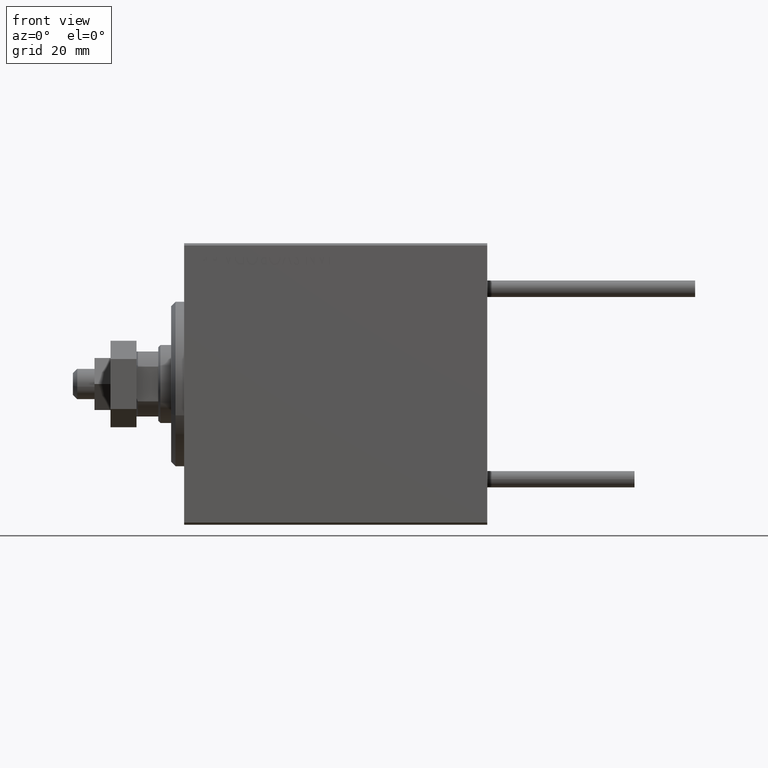
[diagram: clean part render]
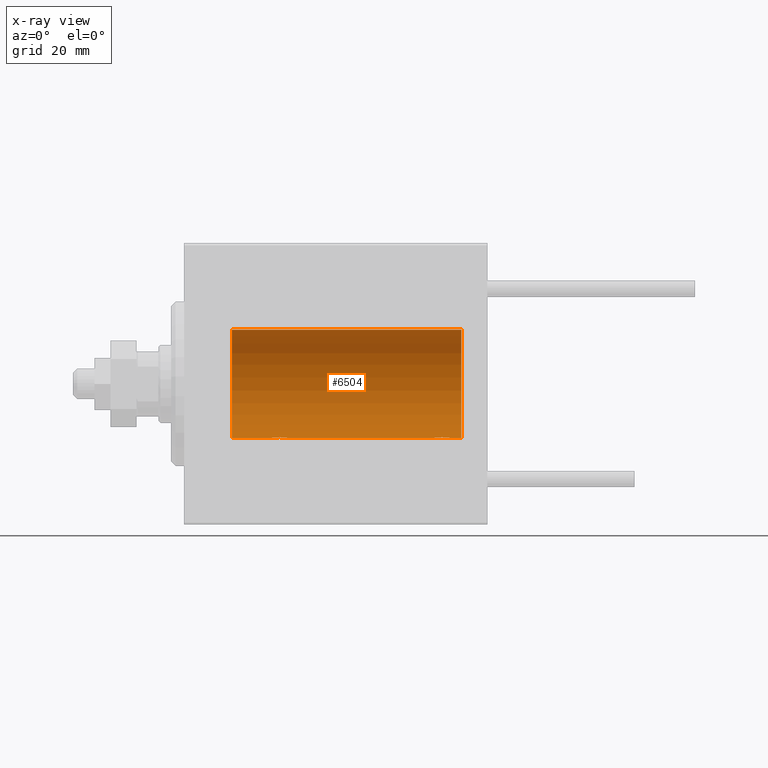
[diagram: x-ray — body ghosted, one internal face saturated and labeled with its STEP entity id]
A machine part, front view, then the same camera in x-ray: the body is ghosted and one INTERNAL B-rep face — a face not visible from any outside direction — is saturated and labeled: STEP entity #6504.
In plain terms, the highlighted cylindrical surface (partial cylindrical patch) has radius 12.5 mm, axis along (-1, -0, -0).
Its self-contained STEP definition (entity closure, byte-faithful):
#264 = CARTESIAN_POINT ( 'NONE',  ( 57.50000000000000000, -7.533308568696040923E-15, -12.50000000000000000 ) ) ;
#273 = ORIENTED_EDGE ( 'NONE', *, *, #11790, .T. ) ;
#953 = CARTESIAN_POINT ( 'NONE',  ( 64.00000000000000000, 0.000000000000000000, 12.50000000000000000 ) ) ;
#1236 = CARTESIAN_POINT ( 'NONE',  ( 24.00000000000000711, 0.1306394121199392910, -12.50000000000000533 ) ) ;
#1780 = DIRECTION ( 'NONE',  ( -1.000000000000000000, 0.000000000000000000, 0.000000000000000000 ) ) ;
#2005 = CARTESIAN_POINT ( 'NONE',  ( 20.06395648222636652, 0.5184196815546032733, -12.48990118705761532 ) ) ;
#4083 = CARTESIAN_POINT ( 'NONE',  ( 60.50335814299182857, 1.734998657226762608, -12.37922086519035680 ) ) ;
#4326 = CARTESIAN_POINT ( 'NONE',  ( 57.70300788371382339, 0.8876934327478099851, -12.46903010196599659 ) ) ;
#4580 = CARTESIAN_POINT ( 'NONE',  ( 57.99398366327209686, 1.322451657002070347, -12.43019346654085489 ) ) ;
#5432 = CARTESIAN_POINT ( 'NONE',  ( 64.00000000000000000, 1.530808498934191521E-15, -12.50000000000000000 ) ) ;
#6271 = DIRECTION ( 'NONE',  ( -1.000000000000000000, -0.000000000000000000, -0.000000000000000000 ) ) ;
#6314 = CARTESIAN_POINT ( 'NONE',  ( 64.00000000000000000, 0.000000000000000000, 0.000000000000000000 ) ) ;
#6504 = ADVANCED_FACE ( 'NONE', ( #17761 ), #29489, .F. ) ;
#6518 = LINE ( 'NONE', #29446, #34287 ) ;
#7635 = CARTESIAN_POINT ( 'NONE',  ( 61.50000000000001421, 0.1306394121199392355, -12.50000000000000178 ) ) ;
#8131 = CARTESIAN_POINT ( 'NONE',  ( 61.08991408680628155, 1.220297236145721387, -12.44076681548080110 ) ) ;
#8320 = LINE ( 'NONE', #20037, #17604 ) ;
#8624 = CARTESIAN_POINT ( 'NONE',  ( 57.50000000000002132, 0.1323736289504287567, -12.50000000000000178 ) ) ;
#8848 = CARTESIAN_POINT ( 'NONE',  ( 10.99999999999999645, 1.530808498934191521E-15, -12.50000000000000000 ) ) ;
#8853 = CARTESIAN_POINT ( 'NONE',  ( 23.73470742397611843, 1.003863686549172352, -12.46009879577771606 ) ) ;
#8891 = CARTESIAN_POINT ( 'NONE',  ( 24.00000000000000000, 1.530808426277417854E-15, -12.50000000000000000 ) ) ;
#8896 = DIRECTION ( 'NONE',  ( -1.000000000000000000, -0.000000000000000000, -0.000000000000000000 ) ) ;
#9109 = CARTESIAN_POINT ( 'NONE',  ( 24.00000000000000000, 1.530808426277417854E-15, -12.50000000000000000 ) ) ;
#9289 = EDGE_CURVE ( 'NONE', #11008, #44469, #9731, .T. ) ;
#9358 = CARTESIAN_POINT ( 'NONE',  ( 20.99316879552500481, 1.747608771958139906, -12.37764291807175354 ) ) ;
#9595 = DIRECTION ( 'NONE',  ( -1.000000000000000000, -0.000000000000000000, -0.000000000000000000 ) ) ;
#9731 = LINE ( 'NONE', #5432, #27243 ) ;
#10443 = ORIENTED_EDGE ( 'NONE', *, *, #34679, .F. ) ;
#11008 = VERTEX_POINT ( 'NONE', #13845 ) ;
#11790 = EDGE_CURVE ( 'NONE', #23114, #16011, #8320, .T. ) ;
#11946 = CARTESIAN_POINT ( 'NONE',  ( 58.27033506126852558, 1.598680238462363956, -12.39873273758732353 ) ) ;
#12675 = CARTESIAN_POINT ( 'NONE',  ( 23.89773031393658087, 0.6448065707253023415, -12.48394649977302073 ) ) ;
#12694 = CARTESIAN_POINT ( 'NONE',  ( 61.29742491916157121, 0.8868029758979365518, -12.46909283808506430 ) ) ;
#12930 = CARTESIAN_POINT ( 'NONE',  ( 22.12992629360264729, 2.000049200055402210, -12.33895470450623044 ) ) ;
#13261 = VERTEX_POINT ( 'NONE', #27252 ) ;
#13446 = CARTESIAN_POINT ( 'NONE',  ( 22.26269462454597914, 1.986986967296540119, -12.34109209020652465 ) ) ;
#13575 = B_SPLINE_CURVE_WITH_KNOTS ( 'NONE', 3,
 ( #264, #8624, #47088, #31068, #46838, #4326, #39698, #15781, #4580, #11946, #35642, #27499, #47589, #28003, #24174, #38948, #43024, #31569, #4083, #20097, #27757, #20354, #8131, #28246, #12694, #19844, #47337, #23674, #7635, #19601 ),
 .UNSPECIFIED., .F., .F.,
 ( 4, 2, 2, 2, 2, 2, 2, 2, 2, 2, 2, 2, 2, 2, 4 ),
 ( 8.524058063799960461E-19, 0.0003914362731607507980, 0.0007828725463215007287, 0.001174308819482250280, 0.001565745092642999723, 0.002348617638964514438, 0.003131490185286029369, 0.003522926458446797027, 0.003914362731607565551, 0.004305799004768333209, 0.004697235277929100866, 0.005088671551089869391, 0.005480107824250637048, 0.005871544097411405573, 0.006262980370572173230 ),
 .UNSPECIFIED. ) ;
#13845 = CARTESIAN_POINT ( 'NONE',  ( 64.00000000000000000, 1.530808498934191521E-15, -12.50000000000000000 ) ) ;
#15781 = CARTESIAN_POINT ( 'NONE',  ( 57.90963319990594727, 1.219754986802277896, -12.44082361696003680 ) ) ;
#16011 = VERTEX_POINT ( 'NONE', #25287 ) ;
#16109 = VERTEX_POINT ( 'NONE', #8848 ) ;
#16501 = CARTESIAN_POINT ( 'NONE',  ( 23.79742491916155700, 0.8868029758979399935, -12.46909283808506430 ) ) ;
#16801 = CARTESIAN_POINT ( 'NONE',  ( 64.00000000000000000, 1.530808498934191521E-15, -12.50000000000000000 ) ) ;
#16934 = CIRCLE ( 'NONE', #20168, 12.50000000000000000 ) ;
#16999 = ORIENTED_EDGE ( 'NONE', *, *, #44848, .T. ) ;
#17195 = CIRCLE ( 'NONE', #48893, 12.50000000000000000 ) ;
#17604 = VECTOR ( 'NONE', #31253, 1000.000000000000000 ) ;
#17761 = FACE_OUTER_BOUND ( 'NONE', #26672, .T. ) ;
#17899 = VECTOR ( 'NONE', #8896, 1000.000000000000000 ) ;
#19019 = ORIENTED_EDGE ( 'NONE', *, *, #28167, .F. ) ;
#19601 = CARTESIAN_POINT ( 'NONE',  ( 61.50000000000000711, 1.530808426270318106E-15, -12.50000000000000000 ) ) ;
#19844 = CARTESIAN_POINT ( 'NONE',  ( 61.39773031393659863, 0.6448065707252995660, -12.48394649977301718 ) ) ;
#20037 = CARTESIAN_POINT ( 'NONE',  ( 64.00000000000000000, 0.000000000000000000, 12.50000000000000000 ) ) ;
#20097 = CARTESIAN_POINT ( 'NONE',  ( 60.71980790594580668, 1.590288205413971090, -12.39864157855465088 ) ) ;
#20119 = LINE ( 'NONE', #16801, #17899 ) ;
#20168 = AXIS2_PLACEMENT_3D ( 'NONE', #22268, #29676, #37795 ) ;
#20354 = CARTESIAN_POINT ( 'NONE',  ( 61.00733550364321900, 1.321095788880535915, -12.43034574091278088 ) ) ;
#20581 = CARTESIAN_POINT ( 'NONE',  ( 19.99999999999999645, -3.966047509268588167E-15, -12.50000000000000000 ) ) ;
#22268 = CARTESIAN_POINT ( 'NONE',  ( 64.00000000000000000, 0.000000000000000000, 0.000000000000000000 ) ) ;
#23114 = VERTEX_POINT ( 'NONE', #953 ) ;
#23674 = CARTESIAN_POINT ( 'NONE',  ( 61.48690384766256045, 0.2633501011236106804, -12.49788564268283864 ) ) ;
#24174 = CARTESIAN_POINT ( 'NONE',  ( 59.76269462454598624, 1.986986967296537232, -12.34109209020652465 ) ) ;
#24656 = CARTESIAN_POINT ( 'NONE',  ( 22.64415233770293412, 1.897967064543090165, -12.35517291625592051 ) ) ;
#24911 = CARTESIAN_POINT ( 'NONE',  ( 19.99999999999999645, 0.1323736289504319763, -12.50000000000000000 ) ) ;
#25165 = CARTESIAN_POINT ( 'NONE',  ( 22.88656313533016373, 1.797558627508998086, -12.37018026341338839 ) ) ;
#25287 = CARTESIAN_POINT ( 'NONE',  ( 10.99999999999999645, 0.000000000000000000, 12.50000000000000000 ) ) ;
#25765 = CARTESIAN_POINT ( 'NONE',  ( 57.50000000000000000, -7.533308568696040923E-15, -12.50000000000000000 ) ) ;
#26672 = EDGE_LOOP ( 'NONE', ( #47512, #10443, #273, #16999, #19019, #32206, #31528, #40466 ) ) ;
#27022 = EDGE_CURVE ( 'NONE', #13261, #35855, #50065, .T. ) ;
#27243 = VECTOR ( 'NONE', #47685, 1000.000000000000000 ) ;
#27252 = CARTESIAN_POINT ( 'NONE',  ( 19.99999999999999645, -3.966047509268588167E-15, -12.50000000000000000 ) ) ;
#27499 = CARTESIAN_POINT ( 'NONE',  ( 58.97436412829508612, 1.947190906025040746, -12.34781876294798231 ) ) ;
#27757 = CARTESIAN_POINT ( 'NONE',  ( 60.82102833500698580, 1.507394620545638331, -12.40913174964213184 ) ) ;
#27981 = CARTESIAN_POINT ( 'NONE',  ( 23.21980790594580313, 1.590288205413975309, -12.39864157855465088 ) ) ;
#28003 = CARTESIAN_POINT ( 'NONE',  ( 59.62992629360267216, 2.000049200055399545, -12.33895470450622867 ) ) ;
#28167 = EDGE_CURVE ( 'NONE', #13261, #16109, #6518, .T. ) ;
#28229 = CARTESIAN_POINT ( 'NONE',  ( 20.26446744561862801, 1.002494658017155871, -12.46021263690096958 ) ) ;
#28246 = CARTESIAN_POINT ( 'NONE',  ( 61.23470742397612554, 1.003863686549173462, -12.46009879577771429 ) ) ;
#28488 = CARTESIAN_POINT ( 'NONE',  ( 22.51937350851555308, 1.935814255713574905, -12.34922241902463114 ) ) ;
#28520 = EDGE_CURVE ( 'NONE', #45550, #44469, #13575, .T. ) ;
#29446 = CARTESIAN_POINT ( 'NONE',  ( 64.00000000000000000, 1.530808498934191521E-15, -12.50000000000000000 ) ) ;
#29489 = CYLINDRICAL_SURFACE ( 'NONE', #37058, 12.50000000000000000 ) ;
#29676 = DIRECTION ( 'NONE',  ( -1.000000000000000000, 0.000000000000000000, 0.000000000000000000 ) ) ;
#31068 = CARTESIAN_POINT ( 'NONE',  ( 57.56395648222637362, 0.5184196815546008308, -12.48990118705761354 ) ) ;
#31253 = DIRECTION ( 'NONE',  ( -1.000000000000000000, -0.000000000000000000, -0.000000000000000000 ) ) ;
#31528 = ORIENTED_EDGE ( 'NONE', *, *, #38717, .F. ) ;
#31569 = CARTESIAN_POINT ( 'NONE',  ( 60.38656313533017084, 1.797558627508995643, -12.37018026341338484 ) ) ;
#32206 = ORIENTED_EDGE ( 'NONE', *, *, #27022, .T. ) ;
#32294 = CARTESIAN_POINT ( 'NONE',  ( 20.40963319990594016, 1.219754986802279451, -12.44082361696003503 ) ) ;
#32812 = CARTESIAN_POINT ( 'NONE',  ( 20.10252270298193622, 0.6455696738844897142, -12.48390768591463207 ) ) ;
#34287 = VECTOR ( 'NONE', #6271, 1000.000000000000000 ) ;
#34679 = EDGE_CURVE ( 'NONE', #23114, #11008, #16934, .T. ) ;
#35642 = CARTESIAN_POINT ( 'NONE',  ( 58.49316879552502257, 1.747608771958137241, -12.37764291807175709 ) ) ;
#35855 = VERTEX_POINT ( 'NONE', #8891 ) ;
#36119 = CARTESIAN_POINT ( 'NONE',  ( 23.98690384766256400, 0.2633501011236120681, -12.49788564268284041 ) ) ;
#36629 = CARTESIAN_POINT ( 'NONE',  ( 21.47436412829510033, 1.947190906025044077, -12.34781876294798053 ) ) ;
#37058 = AXIS2_PLACEMENT_3D ( 'NONE', #6314, #9595, #40678 ) ;
#37795 = DIRECTION ( 'NONE',  ( 0.000000000000000000, 0.000000000000000000, 1.000000000000000000 ) ) ;
#38717 = EDGE_CURVE ( 'NONE', #45550, #35855, #20119, .T. ) ;
#38948 = CARTESIAN_POINT ( 'NONE',  ( 60.01937350851554243, 1.935814255713572019, -12.34922241902462758 ) ) ;
#39677 = CARTESIAN_POINT ( 'NONE',  ( 23.50733550364322255, 1.321095788880538136, -12.43034574091277911 ) ) ;
#39698 = CARTESIAN_POINT ( 'NONE',  ( 57.76446744561862801, 1.002494658017153872, -12.46021263690097136 ) ) ;
#39764 = CARTESIAN_POINT ( 'NONE',  ( 61.50000000000000711, 1.530808426270318106E-15, -12.50000000000000000 ) ) ;
#39933 = CARTESIAN_POINT ( 'NONE',  ( 20.01301208516349206, 0.2624928479599882847, -12.49789934882883458 ) ) ;
#40464 = CARTESIAN_POINT ( 'NONE',  ( 10.99999999999999645, 0.000000000000000000, 0.000000000000000000 ) ) ;
#40466 = ORIENTED_EDGE ( 'NONE', *, *, #28520, .T. ) ;
#40678 = DIRECTION ( 'NONE',  ( 0.000000000000000000, 0.000000000000000000, 1.000000000000000000 ) ) ;
#40691 = CARTESIAN_POINT ( 'NONE',  ( 23.00335814299181436, 1.734998657226765939, -12.37922086519035325 ) ) ;
#43024 = CARTESIAN_POINT ( 'NONE',  ( 60.14415233770295544, 1.897967064543087723, -12.35517291625591874 ) ) ;
#43287 = DIRECTION ( 'NONE',  ( 0.000000000000000000, 0.000000000000000000, 1.000000000000000000 ) ) ;
#43504 = CARTESIAN_POINT ( 'NONE',  ( 23.32102833500698225, 1.507394620545640773, -12.40913174964213184 ) ) ;
#43752 = CARTESIAN_POINT ( 'NONE',  ( 20.77033506126850426, 1.598680238462369951, -12.39873273758732175 ) ) ;
#44012 = CARTESIAN_POINT ( 'NONE',  ( 23.93561774521849728, 0.5201193324741352209, -12.48983485452574982 ) ) ;
#44469 = VERTEX_POINT ( 'NONE', #39764 ) ;
#44848 = EDGE_CURVE ( 'NONE', #16011, #16109, #17195, .T. ) ;
#45550 = VERTEX_POINT ( 'NONE', #25765 ) ;
#46838 = CARTESIAN_POINT ( 'NONE',  ( 57.60252270298195043, 0.6455696738844883820, -12.48390768591463384 ) ) ;
#47088 = CARTESIAN_POINT ( 'NONE',  ( 57.51301208516348851, 0.2624928479599860642, -12.49789934882883458 ) ) ;
#47337 = CARTESIAN_POINT ( 'NONE',  ( 61.43561774521850083, 0.5201193324741332225, -12.48983485452574982 ) ) ;
#47512 = ORIENTED_EDGE ( 'NONE', *, *, #9289, .F. ) ;
#47567 = CARTESIAN_POINT ( 'NONE',  ( 23.58991408680628155, 1.220297236145721609, -12.44076681548080288 ) ) ;
#47589 = CARTESIAN_POINT ( 'NONE',  ( 59.23788193668374902, 1.999901172190674981, -12.33897869807161207 ) ) ;
#47685 = DIRECTION ( 'NONE',  ( -1.000000000000000000, -0.000000000000000000, -0.000000000000000000 ) ) ;
#47809 = CARTESIAN_POINT ( 'NONE',  ( 21.73788193668374902, 1.999901172190678533, -12.33897869807161385 ) ) ;
#48076 = CARTESIAN_POINT ( 'NONE',  ( 20.49398366327207910, 1.322451657002076120, -12.43019346654084956 ) ) ;
#48334 = CARTESIAN_POINT ( 'NONE',  ( 20.20300788371381273, 0.8876934327478117615, -12.46903010196599304 ) ) ;
#48893 = AXIS2_PLACEMENT_3D ( 'NONE', #40464, #1780, #43287 ) ;
#50065 = B_SPLINE_CURVE_WITH_KNOTS ( 'NONE', 3,
 ( #20581, #24911, #39933, #2005, #32812, #48334, #28229, #32294, #48076, #43752, #9358, #36629, #47809, #12930, #13446, #28488, #24656, #25165, #40691, #27981, #43504, #39677, #47567, #8853, #16501, #12675, #44012, #36119, #1236, #9109 ),
 .UNSPECIFIED., .F., .F.,
 ( 4, 2, 2, 2, 2, 2, 2, 2, 2, 2, 2, 2, 2, 2, 4 ),
 ( 3.611342868676865251E-19, 0.0003914362731607586585, 0.0007828725463215168833, 0.001174308819482275217, 0.001565745092643033550, 0.002348617638964549999, 0.003131490185286066666, 0.003522926458446830420, 0.003914362731607594174, 0.004305799004768357495, 0.004697235277929121683, 0.005088671551089885003, 0.005480107824250649191, 0.005871544097411412512, 0.006262980370572176700 ),
 .UNSPECIFIED. ) ;